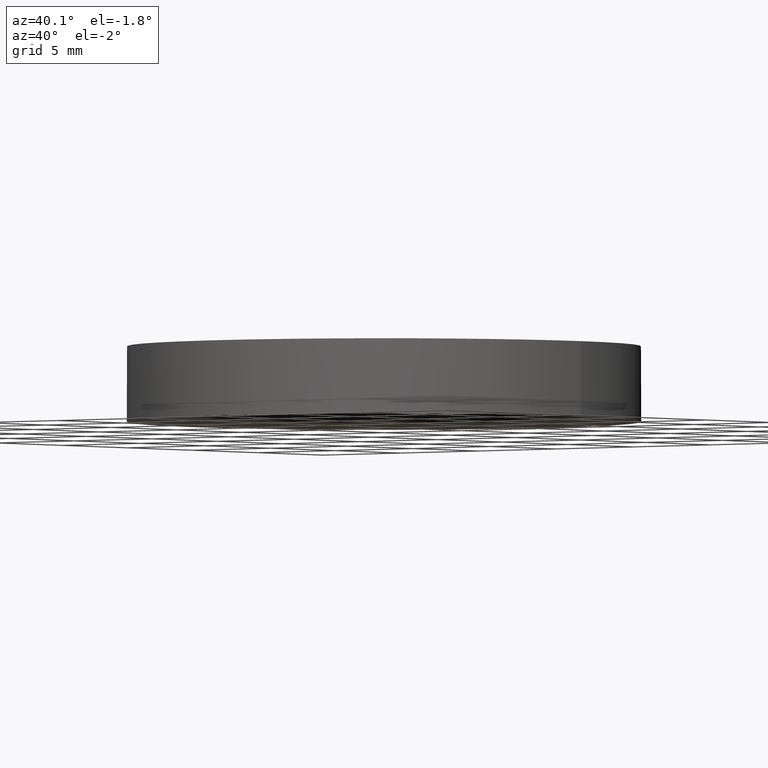
[diagram: clean part render]
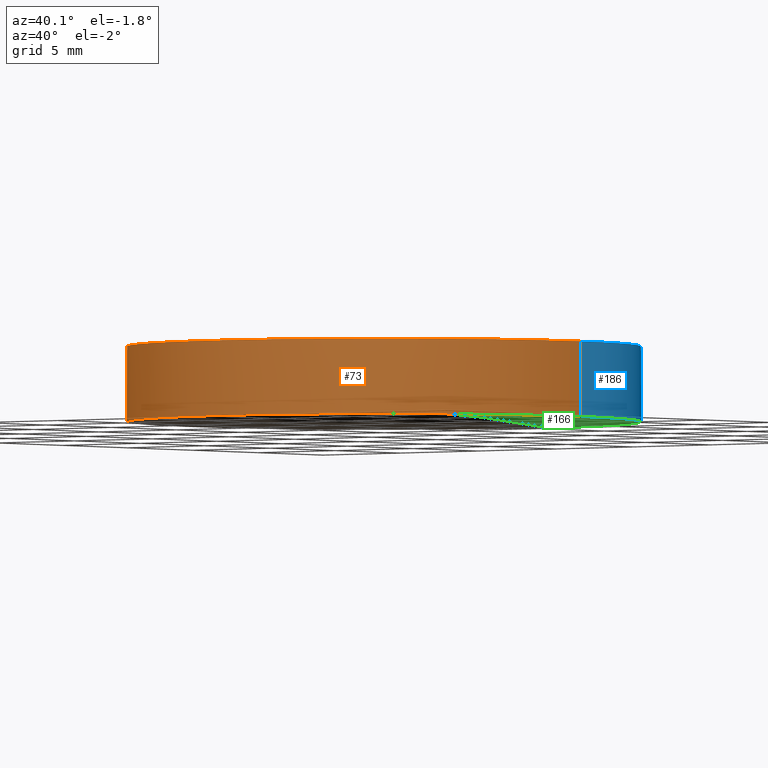
[diagram: same view with three faces highlighted in distinct colors, each labeled with its STEP entity id]
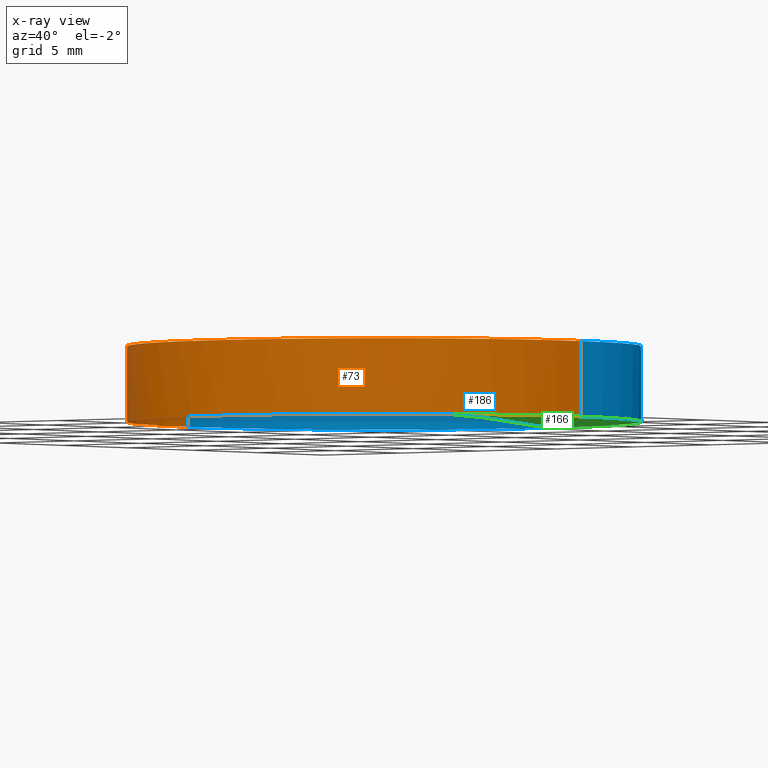
[diagram: x-ray of the same camera — body ghosted, the three highlighted faces saturated]
A machine part, auxiliary view with three faces highlighted in distinct colors.
The next image is the same camera in x-ray (body ghosted, the three faces saturated) — at least one of them is partly hidden behind the body in this view.
Their STEP definitions:

[orange] entity #73 — the highlighted cylindrical surface (partial cylindrical patch) has radius 12.7 mm, axis along (0, 0, 1).
#3 = ORIENTED_EDGE ( 'NONE', *, *, #54, .T. ) ;
#8 = CARTESIAN_POINT ( 'NONE',  ( 6.558480859566113400E-014, -12.69999999999995100, -0.6232786285613619600 ) ) ;
#22 = ORIENTED_EDGE ( 'NONE', *, *, #74, .T. ) ;
#26 = VERTEX_POINT ( 'NONE', #8 ) ;
#28 = ORIENTED_EDGE ( 'NONE', *, *, #126, .F. ) ;
#31 = CARTESIAN_POINT ( 'NONE',  ( -12.69999999999999900, 3.997792089092478900E-015, 3.100000000000000500 ) ) ;
#36 = CARTESIAN_POINT ( 'NONE',  ( 12.69999999999999900, 2.442490654175340100E-015, -0.6232786285613769500 ) ) ;
#39 = EDGE_CURVE ( 'NONE', #209, #75, #233, .T. ) ;
#54 = EDGE_CURVE ( 'NONE', #26, #209, #91, .T. ) ;
#57 = LINE ( 'NONE', #81, #127 ) ;
#64 = AXIS2_PLACEMENT_3D ( 'NONE', #79, #147, #131 ) ;
#67 = CARTESIAN_POINT ( 'NONE',  ( 4.996003610813200500E-016, 2.442490654175340100E-015, -0.6232786285613769500 ) ) ;
#73 = ADVANCED_FACE ( 'NONE', ( #226 ), #123, .T. ) ;
#74 = EDGE_CURVE ( 'NONE', #208, #26, #103, .T. ) ;
#75 = VERTEX_POINT ( 'NONE', #215 ) ;
#76 = CIRCLE ( 'NONE', #157, 12.69999999999999900 ) ;
#78 = DIRECTION ( 'NONE',  ( 0.0000000000000000000, 0.0000000000000000000, 1.000000000000000000 ) ) ;
#79 = CARTESIAN_POINT ( 'NONE',  ( 4.996003610813200500E-016, 2.442490654175340100E-015, -0.6232786285613769500 ) ) ;
#81 = CARTESIAN_POINT ( 'NONE',  ( -12.69999999999999900, 3.997792089092478900E-015, -0.6232786285613769500 ) ) ;
#82 = DIRECTION ( 'NONE',  ( 0.0000000000000000000, 0.0000000000000000000, 1.000000000000000000 ) ) ;
#91 = CIRCLE ( 'NONE', #64, 12.69999999999999900 ) ;
#97 = DIRECTION ( 'NONE',  ( 0.0000000000000000000, 0.0000000000000000000, 1.000000000000000000 ) ) ;
#98 = CARTESIAN_POINT ( 'NONE',  ( 4.996003610813200500E-016, 2.442490654175340100E-015, -0.6232786285613769500 ) ) ;
#103 = CIRCLE ( 'NONE', #200, 12.69999999999999900 ) ;
#104 = DIRECTION ( 'NONE',  ( 1.000000000000000000, 0.0000000000000000000, 0.0000000000000000000 ) ) ;
#105 = DIRECTION ( 'NONE',  ( -0.0000000000000000000, -0.0000000000000000000, -1.000000000000000000 ) ) ;
#109 = ORIENTED_EDGE ( 'NONE', *, *, #172, .T. ) ;
#120 = CARTESIAN_POINT ( 'NONE',  ( -12.69999999999999900, 3.997792089092478900E-015, -0.6232786285613769500 ) ) ;
#123 = CYLINDRICAL_SURFACE ( 'NONE', #142, 12.69999999999999900 ) ;
#126 = EDGE_CURVE ( 'NONE', #208, #184, #57, .T. ) ;
#127 = VECTOR ( 'NONE', #214, 1000.000000000000000 ) ;
#131 = DIRECTION ( 'NONE',  ( 1.000000000000000000, 0.0000000000000000000, 0.0000000000000000000 ) ) ;
#136 = VECTOR ( 'NONE', #78, 1000.000000000000000 ) ;
#142 = AXIS2_PLACEMENT_3D ( 'NONE', #98, #97, #153 ) ;
#147 = DIRECTION ( 'NONE',  ( 0.0000000000000000000, 0.0000000000000000000, 1.000000000000000000 ) ) ;
#153 = DIRECTION ( 'NONE',  ( 1.000000000000000000, 0.0000000000000000000, 0.0000000000000000000 ) ) ;
#156 = DIRECTION ( 'NONE',  ( 1.000000000000000000, 0.0000000000000000000, 0.0000000000000000000 ) ) ;
#157 = AXIS2_PLACEMENT_3D ( 'NONE', #220, #105, #104 ) ;
#172 = EDGE_CURVE ( 'NONE', #75, #184, #76, .T. ) ;
#184 = VERTEX_POINT ( 'NONE', #31 ) ;
#193 = CARTESIAN_POINT ( 'NONE',  ( 12.69999999999999900, 2.442490654175340100E-015, -0.6232786285613769500 ) ) ;
#194 = EDGE_LOOP ( 'NONE', ( #28, #22, #3, #202, #109 ) ) ;
#200 = AXIS2_PLACEMENT_3D ( 'NONE', #67, #82, #156 ) ;
#202 = ORIENTED_EDGE ( 'NONE', *, *, #39, .T. ) ;
#208 = VERTEX_POINT ( 'NONE', #120 ) ;
#209 = VERTEX_POINT ( 'NONE', #36 ) ;
#214 = DIRECTION ( 'NONE',  ( 0.0000000000000000000, 0.0000000000000000000, 1.000000000000000000 ) ) ;
#215 = CARTESIAN_POINT ( 'NONE',  ( 12.69999999999999900, 2.442490654175340100E-015, 3.100000000000000500 ) ) ;
#220 = CARTESIAN_POINT ( 'NONE',  ( 4.996003610813200500E-016, 2.442490654175340100E-015, 3.100000000000000500 ) ) ;
#226 = FACE_OUTER_BOUND ( 'NONE', #194, .T. ) ;
#233 = LINE ( 'NONE', #193, #136 ) ;

[blue] entity #186 — the highlighted cylindrical surface (partial cylindrical patch) has radius 12.7 mm, axis along (0, 0, 1).
#1 = EDGE_CURVE ( 'NONE', #167, #208, #222, .T. ) ;
#15 = EDGE_CURVE ( 'NONE', #209, #167, #33, .T. ) ;
#25 = CIRCLE ( 'NONE', #119, 12.69999999999999900 ) ;
#31 = CARTESIAN_POINT ( 'NONE',  ( -12.69999999999999900, 3.997792089092478900E-015, 3.100000000000000500 ) ) ;
#33 = CIRCLE ( 'NONE', #89, 12.69999999999999900 ) ;
#36 = CARTESIAN_POINT ( 'NONE',  ( 12.69999999999999900, 2.442490654175340100E-015, -0.6232786285613769500 ) ) ;
#39 = EDGE_CURVE ( 'NONE', #209, #75, #233, .T. ) ;
#42 = DIRECTION ( 'NONE',  ( 0.0000000000000000000, 0.0000000000000000000, 1.000000000000000000 ) ) ;
#46 = DIRECTION ( 'NONE',  ( -0.0000000000000000000, -0.0000000000000000000, -1.000000000000000000 ) ) ;
#47 = DIRECTION ( 'NONE',  ( 1.000000000000000000, 0.0000000000000000000, 0.0000000000000000000 ) ) ;
#57 = LINE ( 'NONE', #81, #127 ) ;
#59 = DIRECTION ( 'NONE',  ( 1.000000000000000000, 0.0000000000000000000, 0.0000000000000000000 ) ) ;
#60 = ORIENTED_EDGE ( 'NONE', *, *, #39, .F. ) ;
#61 = AXIS2_PLACEMENT_3D ( 'NONE', #77, #212, #93 ) ;
#75 = VERTEX_POINT ( 'NONE', #215 ) ;
#77 = CARTESIAN_POINT ( 'NONE',  ( 4.996003610813200500E-016, 2.442490654175340100E-015, -0.6232786285613769500 ) ) ;
#78 = DIRECTION ( 'NONE',  ( 0.0000000000000000000, 0.0000000000000000000, 1.000000000000000000 ) ) ;
#80 = ORIENTED_EDGE ( 'NONE', *, *, #1, .T. ) ;
#81 = CARTESIAN_POINT ( 'NONE',  ( -12.69999999999999900, 3.997792089092478900E-015, -0.6232786285613769500 ) ) ;
#89 = AXIS2_PLACEMENT_3D ( 'NONE', #148, #42, #59 ) ;
#93 = DIRECTION ( 'NONE',  ( 1.000000000000000000, 0.0000000000000000000, 0.0000000000000000000 ) ) ;
#102 = CARTESIAN_POINT ( 'NONE',  ( 4.996003610813200500E-016, 2.442490654175340100E-015, -0.6232786285613769500 ) ) ;
#107 = ORIENTED_EDGE ( 'NONE', *, *, #15, .T. ) ;
#119 = AXIS2_PLACEMENT_3D ( 'NONE', #180, #46, #47 ) ;
#120 = CARTESIAN_POINT ( 'NONE',  ( -12.69999999999999900, 3.997792089092478900E-015, -0.6232786285613769500 ) ) ;
#126 = EDGE_CURVE ( 'NONE', #208, #184, #57, .T. ) ;
#127 = VECTOR ( 'NONE', #214, 1000.000000000000000 ) ;
#128 = EDGE_CURVE ( 'NONE', #184, #75, #25, .T. ) ;
#136 = VECTOR ( 'NONE', #78, 1000.000000000000000 ) ;
#148 = CARTESIAN_POINT ( 'NONE',  ( 4.996003610813200500E-016, 2.442490654175340100E-015, -0.6232786285613769500 ) ) ;
#149 = CARTESIAN_POINT ( 'NONE',  ( 7.127553974516716400E-014, 12.69999999999996900, -0.6232786285613619600 ) ) ;
#158 = ORIENTED_EDGE ( 'NONE', *, *, #128, .T. ) ;
#167 = VERTEX_POINT ( 'NONE', #149 ) ;
#174 = EDGE_LOOP ( 'NONE', ( #107, #80, #225, #158, #60 ) ) ;
#180 = CARTESIAN_POINT ( 'NONE',  ( 4.996003610813200500E-016, 2.442490654175340100E-015, 3.100000000000000500 ) ) ;
#184 = VERTEX_POINT ( 'NONE', #31 ) ;
#186 = ADVANCED_FACE ( 'NONE', ( #227 ), #192, .T. ) ;
#190 = AXIS2_PLACEMENT_3D ( 'NONE', #102, #234, #235 ) ;
#192 = CYLINDRICAL_SURFACE ( 'NONE', #190, 12.69999999999999900 ) ;
#193 = CARTESIAN_POINT ( 'NONE',  ( 12.69999999999999900, 2.442490654175340100E-015, -0.6232786285613769500 ) ) ;
#208 = VERTEX_POINT ( 'NONE', #120 ) ;
#209 = VERTEX_POINT ( 'NONE', #36 ) ;
#212 = DIRECTION ( 'NONE',  ( 0.0000000000000000000, 0.0000000000000000000, 1.000000000000000000 ) ) ;
#214 = DIRECTION ( 'NONE',  ( 0.0000000000000000000, 0.0000000000000000000, 1.000000000000000000 ) ) ;
#215 = CARTESIAN_POINT ( 'NONE',  ( 12.69999999999999900, 2.442490654175340100E-015, 3.100000000000000500 ) ) ;
#222 = CIRCLE ( 'NONE', #61, 12.69999999999999900 ) ;
#225 = ORIENTED_EDGE ( 'NONE', *, *, #126, .T. ) ;
#227 = FACE_OUTER_BOUND ( 'NONE', #174, .T. ) ;
#233 = LINE ( 'NONE', #193, #136 ) ;
#234 = DIRECTION ( 'NONE',  ( 0.0000000000000000000, 0.0000000000000000000, 1.000000000000000000 ) ) ;
#235 = DIRECTION ( 'NONE',  ( 1.000000000000000000, 0.0000000000000000000, 0.0000000000000000000 ) ) ;

[green] entity #166 — the highlighted face is a freeform B-spline surface patch.
#8 = CARTESIAN_POINT ( 'NONE',  ( 6.558480859566113400E-014, -12.69999999999995100, -0.6232786285613619600 ) ) ;
#12 = CARTESIAN_POINT ( 'NONE',  ( 1.421085471520200100E-014, 1.421085471520200100E-014, -129.6999999999999900 ) ) ;
#15 = EDGE_CURVE ( 'NONE', #209, #167, #33, .T. ) ;
#26 = VERTEX_POINT ( 'NONE', #8 ) ;
#33 = CIRCLE ( 'NONE', #89, 12.69999999999999900 ) ;
#36 = CARTESIAN_POINT ( 'NONE',  ( 12.69999999999999900, 2.442490654175340100E-015, -0.6232786285613769500 ) ) ;
#42 = DIRECTION ( 'NONE',  ( 0.0000000000000000000, 0.0000000000000000000, 1.000000000000000000 ) ) ;
#53 = ORIENTED_EDGE ( 'NONE', *, *, #15, .F. ) ;
#54 = EDGE_CURVE ( 'NONE', #26, #209, #91, .T. ) ;
#59 = DIRECTION ( 'NONE',  ( 1.000000000000000000, 0.0000000000000000000, 0.0000000000000000000 ) ) ;
#62 = CARTESIAN_POINT ( 'NONE',  ( 4.246297980521931400, 12.85190222140400500, -0.6383147123381633900 ) ) ;
#63 = CARTESIAN_POINT ( 'NONE',  ( 8.543445721963358600, -4.298069287684537400, 0.002696849516136746500 ) ) ;
#64 = AXIS2_PLACEMENT_3D ( 'NONE', #79, #147, #131 ) ;
#70 = ORIENTED_EDGE ( 'NONE', *, *, #54, .F. ) ;
#71 = EDGE_CURVE ( 'NONE', #167, #26, #117, .T. ) ;
#79 = CARTESIAN_POINT ( 'NONE',  ( 4.996003610813200500E-016, 2.442490654175340100E-015, -0.6232786285613769500 ) ) ;
#87 = CARTESIAN_POINT ( 'NONE',  ( 8.543445721963362200, 4.298069287684549000, 0.002696849516135879600 ) ) ;
#89 = AXIS2_PLACEMENT_3D ( 'NONE', #148, #42, #59 ) ;
#91 = CIRCLE ( 'NONE', #64, 12.69999999999999900 ) ;
#99 = CARTESIAN_POINT ( 'NONE',  ( 6.554445975148576400E-014, -12.85190222140399100, -0.6383147123381616200 ) ) ;
#100 = CARTESIAN_POINT ( 'NONE',  ( 4.246297980521926100, -12.85190222140399300, -0.6383147123381633900 ) ) ;
#108 = AXIS2_PLACEMENT_3D ( 'NONE', #12, #135, #132 ) ;
#114 = CARTESIAN_POINT ( 'NONE',  ( 12.79698113997892500, 4.298069287684549000, -0.4183405408631419300 ) ) ;
#117 = CIRCLE ( 'NONE', #108, 129.6999999999999900 ) ;
#131 = DIRECTION ( 'NONE',  ( 1.000000000000000000, 0.0000000000000000000, 0.0000000000000000000 ) ) ;
#132 = DIRECTION ( 'NONE',  ( 2.240445334451199600E-016, 1.000000000000000000, 0.0000000000000000000 ) ) ;
#135 = DIRECTION ( 'NONE',  ( 1.000000000000000000, -2.240445334451200100E-016, -4.200549787686929800E-016 ) ) ;
#147 = DIRECTION ( 'NONE',  ( 0.0000000000000000000, 0.0000000000000000000, 1.000000000000000000 ) ) ;
#148 = CARTESIAN_POINT ( 'NONE',  ( 4.996003610813200500E-016, 2.442490654175340100E-015, -0.6232786285613769500 ) ) ;
#149 = CARTESIAN_POINT ( 'NONE',  ( 7.127553974516716400E-014, 12.69999999999996900, -0.6232786285613619600 ) ) ;
#152 = CARTESIAN_POINT ( 'NONE',  ( 6.781869649625357900E-014, -4.298069287684535700, 0.2134719680957820300 ) ) ;
#165 = FACE_OUTER_BOUND ( 'NONE', #189, .T. ) ;
#166 = ADVANCED_FACE ( 'NONE', ( #165 ), #173, .F. ) ;
#167 = VERTEX_POINT ( 'NONE', #149 ) ;
#173 =( BOUNDED_SURFACE ( )  B_SPLINE_SURFACE ( 3, 3, ( 
 ( #175, #62, #198, #177 ),
 ( #195, #231, #87, #114 ),
 ( #152, #176, #63, #219 ),
 ( #99, #100, #196, #216 ) ),
 .UNSPECIFIED., .F., .F., .F. ) 
 B_SPLINE_SURFACE_WITH_KNOTS ( ( 4, 4 ),
 ( 4, 4 ),
 ( 0.0000000000000000000, 1.000000000000000000 ),
 ( 0.0000000000000000000, 1.000000000000000000 ),
 .UNSPECIFIED. ) 
 GEOMETRIC_REPRESENTATION_ITEM ( )  RATIONAL_B_SPLINE_SURFACE ( (
 ( 1.000000000000000000, 0.9991889511066741600, 0.9991889511066741600, 1.000000000000000000),
 ( 0.9967190197258384300, 0.9959106318679329400, 0.9959106318679329400, 0.9967190197258384300),
 ( 0.9967190197258384300, 0.9959106318679329400, 0.9959106318679329400, 0.9967190197258384300),
 ( 1.000000000000000000, 0.9991889511066741600, 0.9991889511066741600, 1.000000000000000000) ) ) 
 REPRESENTATION_ITEM ( '' )  SURFACE ( )  );
#175 = CARTESIAN_POINT ( 'NONE',  ( 7.130325662563927700E-014, 12.85190222140400700, -0.6383147123381616200 ) ) ;
#176 = CARTESIAN_POINT ( 'NONE',  ( 4.274322874609589800, -4.298069287684536600, 0.2134719680957802800 ) ) ;
#177 = CARTESIAN_POINT ( 'NONE',  ( 12.71307684645442200, 12.85190222140400400, -1.265984698804922400 ) ) ;
#178 = ORIENTED_EDGE ( 'NONE', *, *, #71, .F. ) ;
#189 = EDGE_LOOP ( 'NONE', ( #178, #53, #70 ) ) ;
#195 = CARTESIAN_POINT ( 'NONE',  ( 6.974461435280173600E-014, 4.298069287684550800, 0.2134719680957811700 ) ) ;
#196 = CARTESIAN_POINT ( 'NONE',  ( 8.487430028127034700, -12.85190222140399300, -0.8477078692486037500 ) ) ;
#198 = CARTESIAN_POINT ( 'NONE',  ( 8.487430028127040100, 12.85190222140400500, -0.8477078692486037500 ) ) ;
#209 = VERTEX_POINT ( 'NONE', #36 ) ;
#216 = CARTESIAN_POINT ( 'NONE',  ( 12.71307684645441700, -12.85190222140399500, -1.265984698804922400 ) ) ;
#219 = CARTESIAN_POINT ( 'NONE',  ( 12.79698113997892300, -4.298069287684538300, -0.4183405408631410400 ) ) ;
#231 = CARTESIAN_POINT ( 'NONE',  ( 4.274322874609591600, 4.298069287684549900, 0.2134719680957794000 ) ) ;